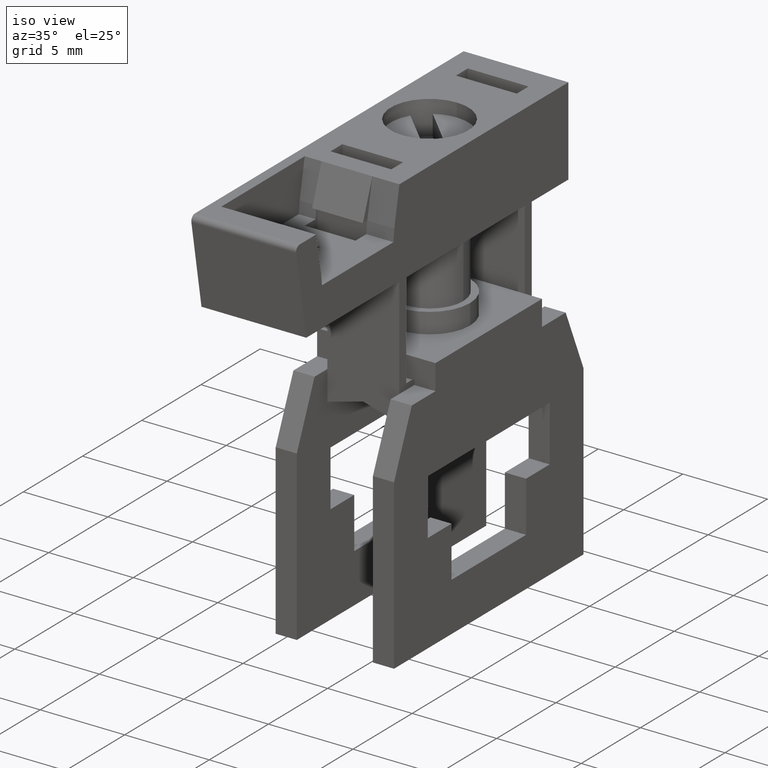
[diagram: clean part render]
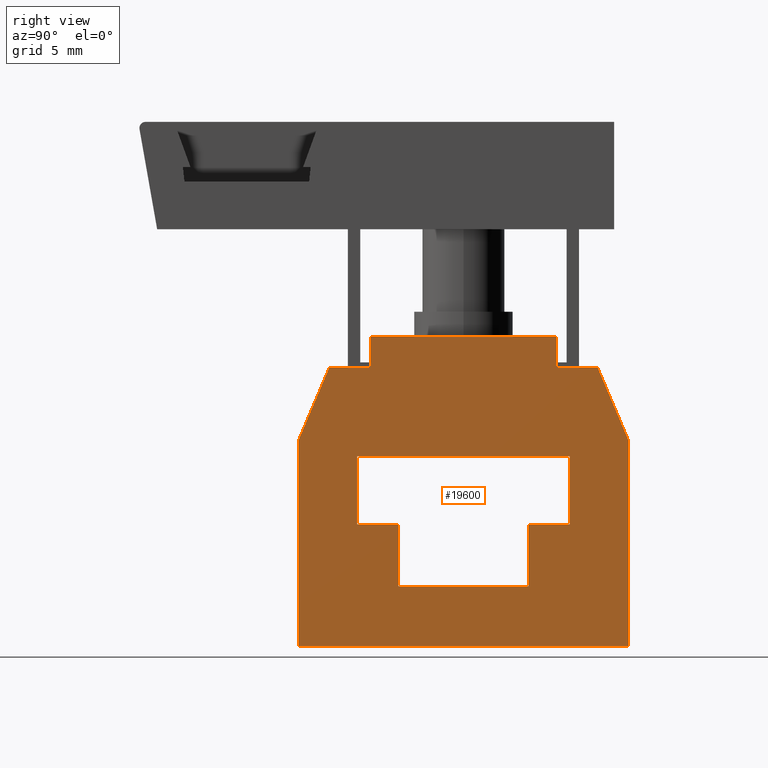
[diagram: tour spotlight — one face highlighted and labeled with its STEP entity id]
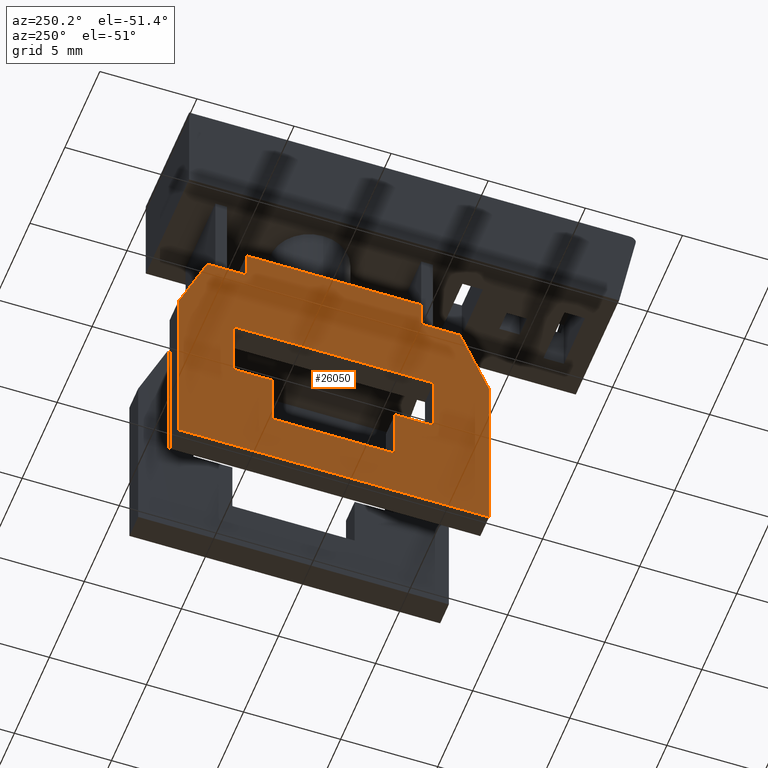
[diagram: tour spotlight — one face highlighted and labeled with its STEP entity id]
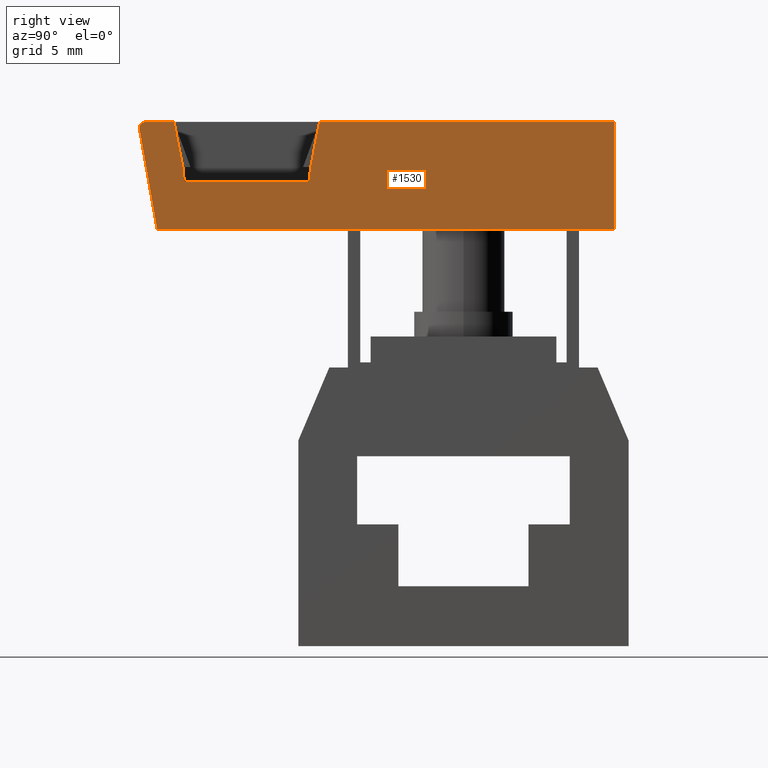
[diagram: tour spotlight — one face highlighted and labeled with its STEP entity id]
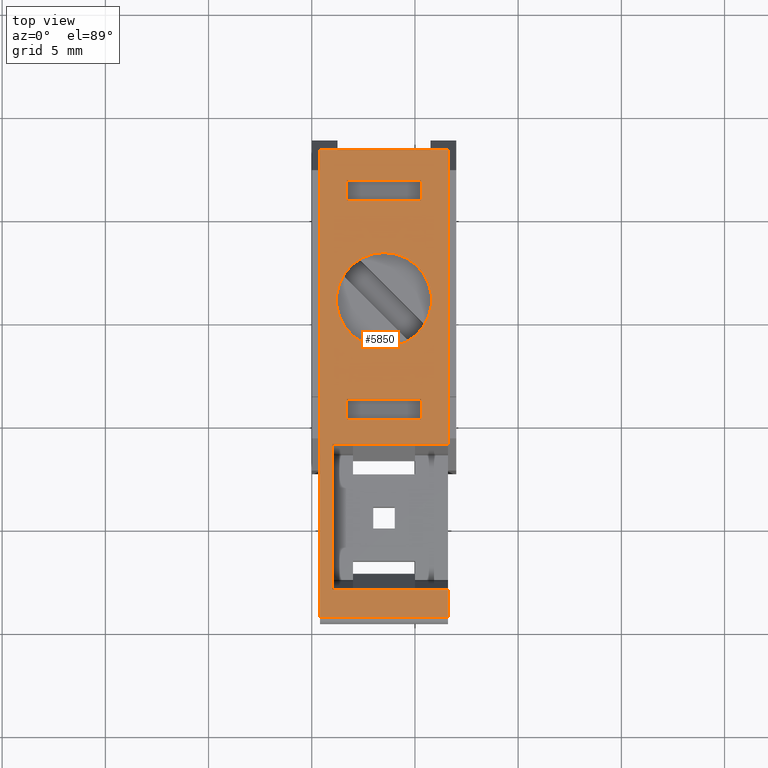
[diagram: tour spotlight — one face highlighted and labeled with its STEP entity id]
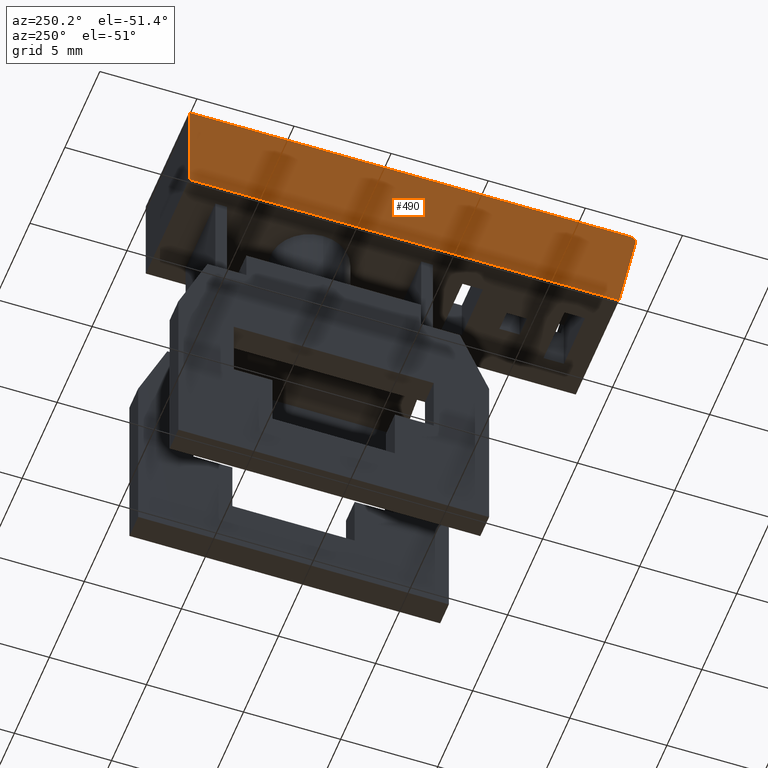
[diagram: tour spotlight — one face highlighted and labeled with its STEP entity id]
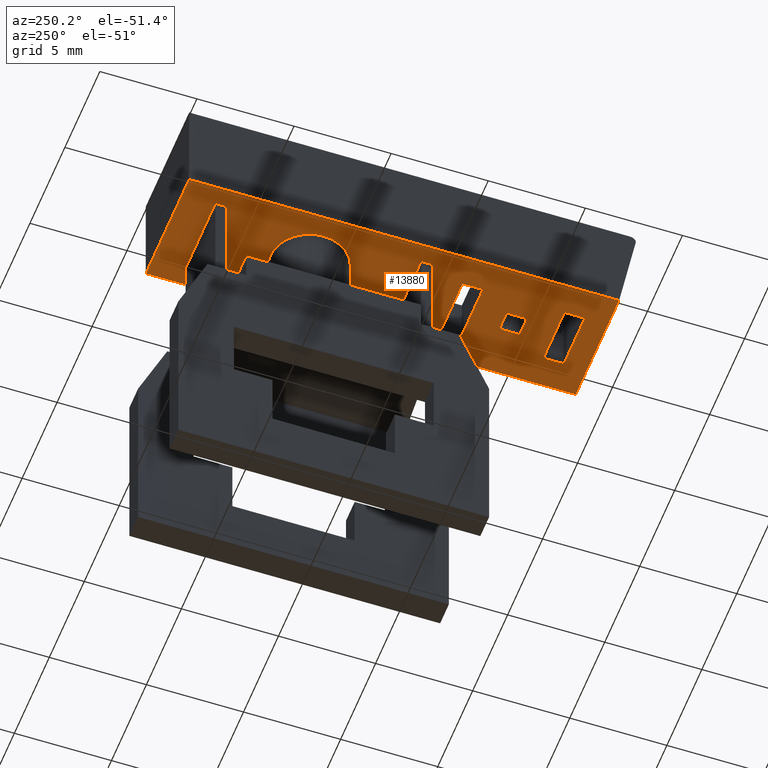
[diagram: tour spotlight — one face highlighted and labeled with its STEP entity id]
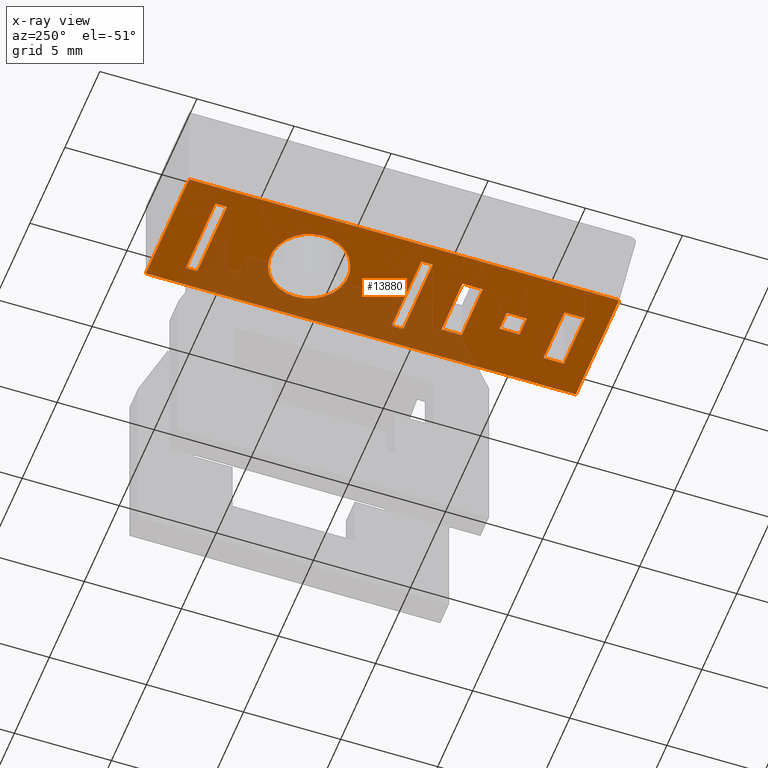
[diagram: x-ray of the same camera — body ghosted, this tour face saturated]
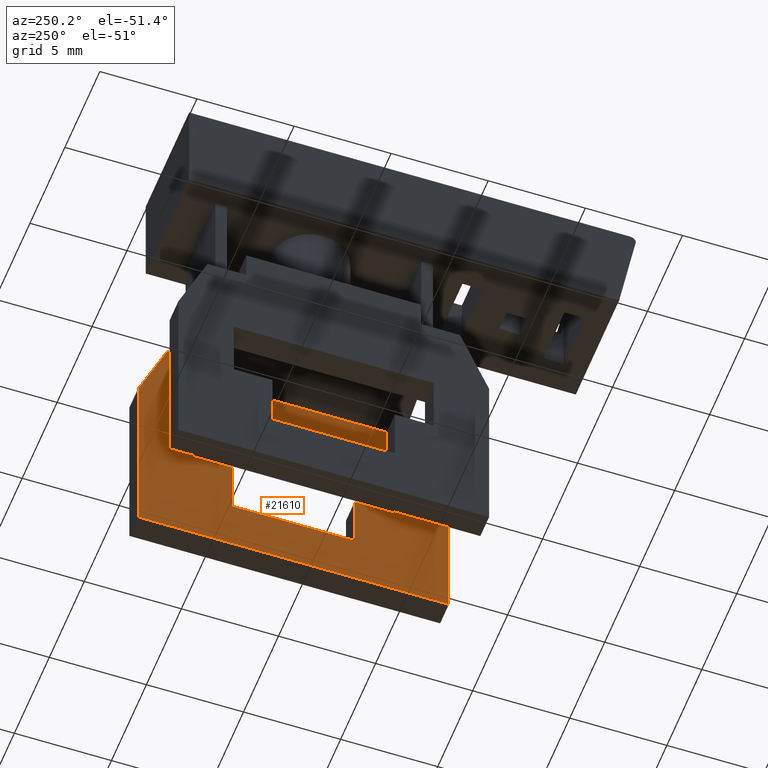
[diagram: tour spotlight — one face highlighted and labeled with its STEP entity id]
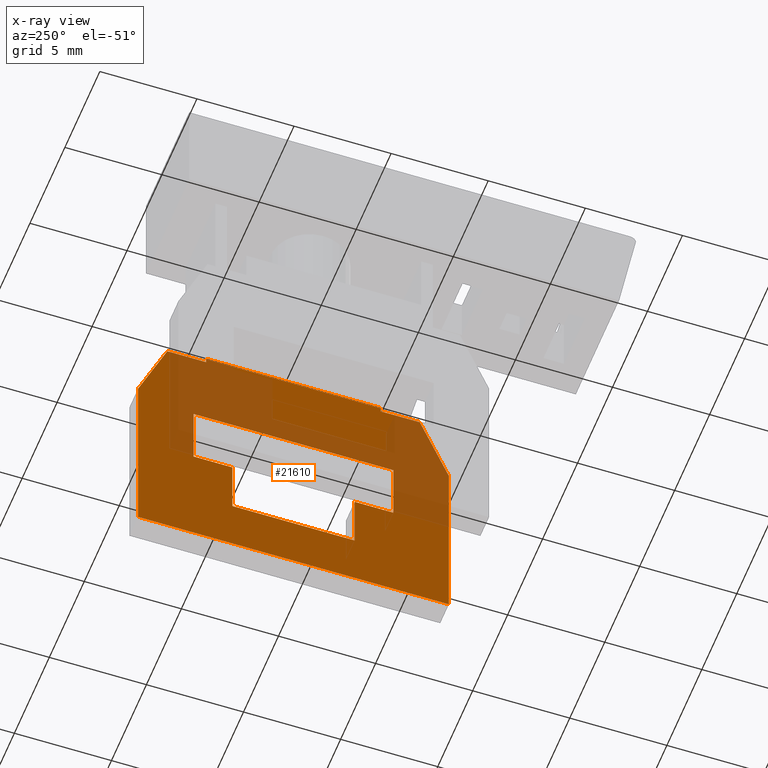
[diagram: x-ray of the same camera — body ghosted, this tour face saturated]
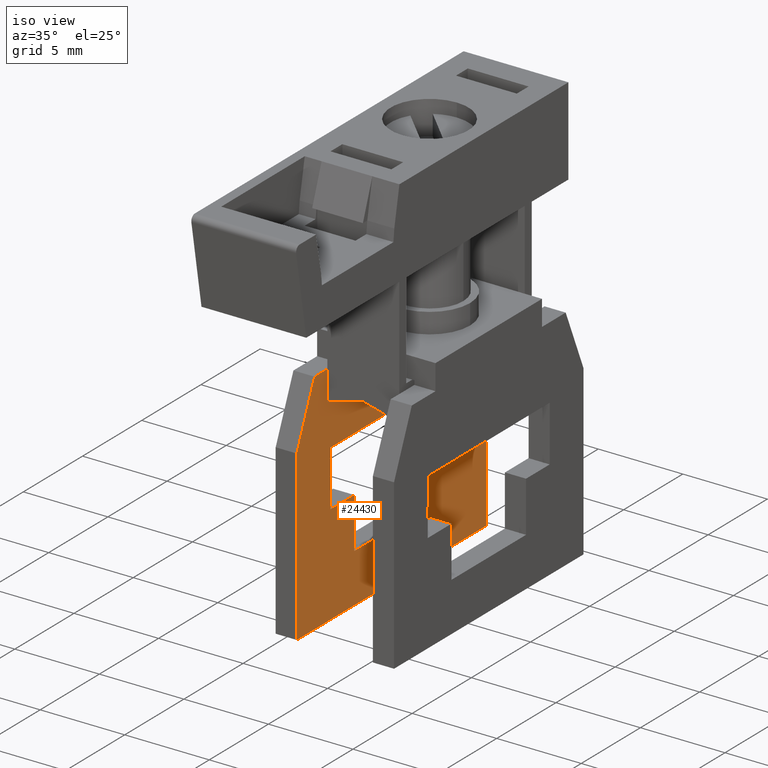
[diagram: tour spotlight — one face highlighted and labeled with its STEP entity id]
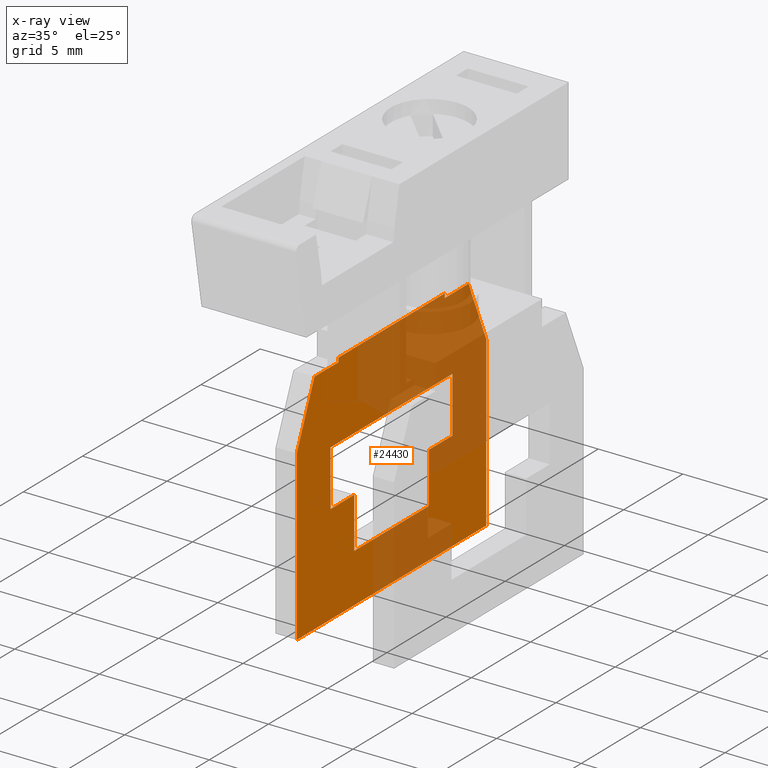
[diagram: x-ray of the same camera — body ghosted, this tour face saturated]
A machine part: a face-by-face anatomy tour. The part has 108 B-rep faces; the first image is the clean iso view, then the 8 largest visible faces are spotlighted one at a time (largest first), each with its STEP entity span.

Face 1 — right view, entity #19600. In plain terms, the highlighted planar face has unit normal (1, 0, 0).
Definition (entity closure, byte-faithful):
#15210=CARTESIAN_POINT('',(0.,19.5,12.5));
#15220=VERTEX_POINT('',#15210);
#15390=CARTESIAN_POINT('',(0.,19.5,3.5));
#15400=VERTEX_POINT('',#15390);
#15430=CARTESIAN_POINT('',(0.,19.5,0.));
#15440=DIRECTION('',(0.,0.,1.));
#15450=VECTOR('',#15440,1.);
#15460=LINE('',#15430,#15450);
#15470=EDGE_CURVE('',#15400,#15220,#15460,.T.);
#16090=CARTESIAN_POINT('',(0.,-1.,12.5));
#16100=DIRECTION('',(0.,1.,-1.83697019872103E-16));
#16110=VECTOR('',#16100,1.);
#16120=LINE('',#16090,#16110);
#16130=CARTESIAN_POINT('',(0.,18.,12.5));
#16140=VERTEX_POINT('',#16130);
#16150=EDGE_CURVE('',#16140,#15220,#16120,.T.);
#17010=CARTESIAN_POINT('',(0.,18.,3.5));
#17020=VERTEX_POINT('',#17010);
#17050=CARTESIAN_POINT('',(0.,-1.,3.50000000000001));
#17060=DIRECTION('',(0.,-1.,1.83697019872103E-16));
#17070=VECTOR('',#17060,1.);
#17080=LINE('',#17050,#17070);
#17090=EDGE_CURVE('',#15400,#17020,#17080,.T.);
#17860=CARTESIAN_POINT('',(0.,18.,1.5));
#17870=VERTEX_POINT('',#17860);
#17900=CARTESIAN_POINT('',(0.,18.,0.));
#17910=DIRECTION('',(0.,-1.83697019872103E-16,-1.));
#17920=VECTOR('',#17910,1.);
#17930=LINE('',#17900,#17920);
#17940=EDGE_CURVE('',#17020,#17870,#17930,.T.);
#18170=CARTESIAN_POINT('',(0.,14.4662214512644,0.));
#18180=VERTEX_POINT('',#18170);
#18210=CARTESIAN_POINT('',(0.,4.5,-4.23041001882971));
#18220=DIRECTION('',(0.,-0.920504853452439,-0.390731128489277));
#18230=VECTOR('',#18220,1.);
#18240=LINE('',#18210,#18230);
#18250=EDGE_CURVE('',#17870,#18180,#18240,.T.);
#18440=CARTESIAN_POINT('',(0.,19.,0.));
#18450=DIRECTION('',(1.,0.,0.));
#18460=DIRECTION('',(0.,-1.,0.));
#18470=AXIS2_PLACEMENT_3D('',#18440,#18450,#18460);
#18480=PLANE('',#18470);
#18490=CARTESIAN_POINT('',(0.,10.4,0.));
#18500=DIRECTION('',(0.,-1.83697019872103E-16,-1.));
#18510=VECTOR('',#18500,1.);
#18520=LINE('',#18490,#18510);
#18530=CARTESIAN_POINT('',(0.,10.4,4.84999999999999));
#18540=VERTEX_POINT('',#18530);
#18550=CARTESIAN_POINT('',(0.,10.4,2.84999999999999));
#18560=VERTEX_POINT('',#18550);
#18570=EDGE_CURVE('',#18540,#18560,#18520,.T.);
#18580=ORIENTED_EDGE('',*,*,#18570,.F.);
#18590=CARTESIAN_POINT('',(0.,4.5,2.85));
#18600=DIRECTION('',(0.,1.,-1.83697019872103E-16));
#18610=VECTOR('',#18600,1.);
#18620=LINE('',#18590,#18610);
#18630=CARTESIAN_POINT('',(0.,13.7,2.84999999999999));
#18640=VERTEX_POINT('',#18630);
#18650=EDGE_CURVE('',#18560,#18640,#18620,.T.);
#18660=ORIENTED_EDGE('',*,*,#18650,.F.);
#18670=CARTESIAN_POINT('',(0.,13.7,0.));
#18680=DIRECTION('',(0.,0.,1.));
#18690=VECTOR('',#18680,1.);
#18700=LINE('',#18670,#18690);
#18710=CARTESIAN_POINT('',(0.,13.7,13.15));
#18720=VERTEX_POINT('',#18710);
#18730=EDGE_CURVE('',#18640,#18720,#18700,.T.);
#18740=ORIENTED_EDGE('',*,*,#18730,.F.);
#18750=CARTESIAN_POINT('',(0.,4.5,13.15));
#18760=DIRECTION('',(0.,-1.,1.83697019872103E-16));
#18770=VECTOR('',#18760,1.);
#18780=LINE('',#18750,#18770);
#18790=CARTESIAN_POINT('',(0.,10.4,13.15));
#18800=VERTEX_POINT('',#18790);
#18810=EDGE_CURVE('',#18720,#18800,#18780,.T.);
#18820=ORIENTED_EDGE('',*,*,#18810,.F.);
#18830=CARTESIAN_POINT('',(0.,10.4,0.));
#18840=DIRECTION('',(0.,-1.83697019872103E-16,-1.));
#18850=VECTOR('',#18840,1.);
#18860=LINE('',#18830,#18850);
#18870=CARTESIAN_POINT('',(0.,10.4,11.15));
#18880=VERTEX_POINT('',#18870);
#18890=EDGE_CURVE('',#18800,#18880,#18860,.T.);
#18900=ORIENTED_EDGE('',*,*,#18890,.F.);
#18910=CARTESIAN_POINT('',(0.,-1.,11.15));
#18920=DIRECTION('',(0.,-1.,1.83697019872103E-16));
#18930=VECTOR('',#18920,1.);
#18940=LINE('',#18910,#18930);
#18950=CARTESIAN_POINT('',(0.,7.40000000000001,11.15));
#18960=VERTEX_POINT('',#18950);
#18970=EDGE_CURVE('',#18880,#18960,#18940,.T.);
#18980=ORIENTED_EDGE('',*,*,#18970,.F.);
#18990=CARTESIAN_POINT('',(0.,7.40000000000001,0.));
#19000=DIRECTION('',(0.,-1.83697019872103E-16,-1.));
#19010=VECTOR('',#19000,1.);
#19020=LINE('',#18990,#19010);
#19030=CARTESIAN_POINT('',(0.,7.40000000000001,4.84999999999999));
#19040=VERTEX_POINT('',#19030);
#19050=EDGE_CURVE('',#18960,#19040,#19020,.T.);
#19060=ORIENTED_EDGE('',*,*,#19050,.F.);
#19070=CARTESIAN_POINT('',(0.,-1.,4.85));
#19080=DIRECTION('',(0.,1.,-1.83697019872103E-16));
#19090=VECTOR('',#19080,1.);
#19100=LINE('',#19070,#19090);
#19110=EDGE_CURVE('',#19040,#18540,#19100,.T.);
#19120=ORIENTED_EDGE('',*,*,#19110,.F.);
#19130=EDGE_LOOP('',(#19120,#19060,#18980,#18900,#18820,#18740,#18660,
#18580));
#19140=FACE_BOUND('',#19130,.T.);
#19150=CARTESIAN_POINT('',(0.,4.5,0.));
#19160=DIRECTION('',(0.,0.,1.));
#19170=VECTOR('',#19160,1.);
#19180=LINE('',#19150,#19170);
#19190=CARTESIAN_POINT('',(0.,4.5,0.));
#19200=VERTEX_POINT('',#19190);
#19210=CARTESIAN_POINT('',(0.,4.5,16.));
#19220=VERTEX_POINT('',#19210);
#19230=EDGE_CURVE('',#19200,#19220,#19180,.T.);
#19240=ORIENTED_EDGE('',*,*,#19230,.F.);
#19250=CARTESIAN_POINT('',(0.,-1.,16.));
#19260=DIRECTION('',(0.,1.,0.));
#19270=VECTOR('',#19260,1.);
#19280=LINE('',#19250,#19270);
#19290=CARTESIAN_POINT('',(0.,14.4662214512644,16.));
#19300=VERTEX_POINT('',#19290);
#19310=EDGE_CURVE('',#19220,#19300,#19280,.T.);
#19320=ORIENTED_EDGE('',*,*,#19310,.F.);
#19330=CARTESIAN_POINT('',(0.,4.5,20.2304100188297));
#19340=DIRECTION('',(0.,0.920504853452439,-0.390731128489276));
#19350=VECTOR('',#19340,1.);
#19360=LINE('',#19330,#19350);
#19370=CARTESIAN_POINT('',(0.,18.,14.5));
#19380=VERTEX_POINT('',#19370);
#19390=EDGE_CURVE('',#19300,#19380,#19360,.T.);
#19400=ORIENTED_EDGE('',*,*,#19390,.F.);
#19410=CARTESIAN_POINT('',(0.,18.,0.));
#19420=DIRECTION('',(0.,-1.83697019872103E-16,-1.));
#19430=VECTOR('',#19420,1.);
#19440=LINE('',#19410,#19430);
#19450=EDGE_CURVE('',#19380,#16140,#19440,.T.);
#19460=ORIENTED_EDGE('',*,*,#19450,.F.);
#19470=ORIENTED_EDGE('',*,*,#16150,.F.);
#19480=ORIENTED_EDGE('',*,*,#15470,.T.);
#19490=ORIENTED_EDGE('',*,*,#17090,.F.);
#19500=ORIENTED_EDGE('',*,*,#17940,.F.);
#19510=ORIENTED_EDGE('',*,*,#18250,.F.);
#19520=CARTESIAN_POINT('',(0.,-1.,0.));
#19530=DIRECTION('',(0.,-1.,0.));
#19540=VECTOR('',#19530,1.);
#19550=LINE('',#19520,#19540);
#19560=EDGE_CURVE('',#18180,#19200,#19550,.T.);
#19570=ORIENTED_EDGE('',*,*,#19560,.F.);
#19580=EDGE_LOOP('',(#19570,#19510,#19500,#19490,#19480,#19470,#19460,
#19400,#19320,#19240));
#19590=FACE_OUTER_BOUND('',#19580,.T.);
#19600=ADVANCED_FACE('',(#19140,#19590),#18480,.T.);

Face 2 — auxiliary view, entity #26050. In plain terms, the highlighted planar face has unit normal (-1, -0, -0).
Definition (entity closure, byte-faithful):
#15230=CARTESIAN_POINT('',(-7.,19.5,12.5));
#15240=VERTEX_POINT('',#15230);
#15270=CARTESIAN_POINT('',(-7.,19.5,0.));
#15280=DIRECTION('',(0.,0.,-1.));
#15290=VECTOR('',#15280,1.);
#15300=LINE('',#15270,#15290);
#15310=CARTESIAN_POINT('',(-7.,19.5,3.5));
#15320=VERTEX_POINT('',#15310);
#15330=EDGE_CURVE('',#15240,#15320,#15300,.T.);
#15980=CARTESIAN_POINT('',(-7.,18.,12.5));
#15990=VERTEX_POINT('',#15980);
#16020=CARTESIAN_POINT('',(-7.,-1.,12.5));
#16030=DIRECTION('',(0.,-1.,1.83697019872103E-16));
#16040=VECTOR('',#16030,1.);
#16050=LINE('',#16020,#16040);
#16060=EDGE_CURVE('',#15240,#15990,#16050,.T.);
#17120=CARTESIAN_POINT('',(-7.,-1.,3.50000000000001));
#17130=DIRECTION('',(0.,1.,-1.83697019872103E-16));
#17140=VECTOR('',#17130,1.);
#17150=LINE('',#17120,#17140);
#17160=CARTESIAN_POINT('',(-7.,18.,3.5));
#17170=VERTEX_POINT('',#17160);
#17180=EDGE_CURVE('',#17170,#15320,#17150,.T.);
#24560=CARTESIAN_POINT('',(-7.,13.7,2.84999999999999));
#24570=VERTEX_POINT('',#24560);
#24600=CARTESIAN_POINT('',(-7.,13.7,0.));
#24610=DIRECTION('',(0.,0.,-1.));
#24620=VECTOR('',#24610,1.);
#24630=LINE('',#24600,#24620);
#24640=CARTESIAN_POINT('',(-7.,13.7,13.15));
#24650=VERTEX_POINT('',#24640);
#24660=EDGE_CURVE('',#24650,#24570,#24630,.T.);
#24840=CARTESIAN_POINT('',(-7.,4.5,0.));
#24850=DIRECTION('',(-1.,0.,0.));
#24860=DIRECTION('',(0.,1.,0.));
#24870=AXIS2_PLACEMENT_3D('',#24840,#24850,#24860);
#24880=PLANE('',#24870);
#24890=CARTESIAN_POINT('',(-7.,-1.,4.85));
#24900=DIRECTION('',(0.,-1.,1.83697019872103E-16));
#24910=VECTOR('',#24900,1.);
#24920=LINE('',#24890,#24910);
#24930=CARTESIAN_POINT('',(-7.,10.4,4.84999999999999));
#24940=VERTEX_POINT('',#24930);
#24950=CARTESIAN_POINT('',(-7.,7.40000000000001,4.84999999999999));
#24960=VERTEX_POINT('',#24950);
#24970=EDGE_CURVE('',#24940,#24960,#24920,.T.);
#24980=ORIENTED_EDGE('',*,*,#24970,.F.);
#24990=CARTESIAN_POINT('',(-7.,7.40000000000001,0.));
#25000=DIRECTION('',(0.,1.83697019872103E-16,1.));
#25010=VECTOR('',#25000,1.);
#25020=LINE('',#24990,#25010);
#25030=CARTESIAN_POINT('',(-7.,7.40000000000001,11.15));
#25040=VERTEX_POINT('',#25030);
#25050=EDGE_CURVE('',#24960,#25040,#25020,.T.);
#25060=ORIENTED_EDGE('',*,*,#25050,.F.);
#25070=CARTESIAN_POINT('',(-7.,-1.,11.15));
#25080=DIRECTION('',(0.,1.,-1.83697019872103E-16));
#25090=VECTOR('',#25080,1.);
#25100=LINE('',#25070,#25090);
#25110=CARTESIAN_POINT('',(-7.,10.4,11.15));
#25120=VERTEX_POINT('',#25110);
#25130=EDGE_CURVE('',#25040,#25120,#25100,.T.);
#25140=ORIENTED_EDGE('',*,*,#25130,.F.);
#25150=CARTESIAN_POINT('',(-7.,10.4,0.));
#25160=DIRECTION('',(0.,1.83697019872103E-16,1.));
#25170=VECTOR('',#25160,1.);
#25180=LINE('',#25150,#25170);
#25190=CARTESIAN_POINT('',(-7.,10.4,13.15));
#25200=VERTEX_POINT('',#25190);
#25210=EDGE_CURVE('',#25120,#25200,#25180,.T.);
#25220=ORIENTED_EDGE('',*,*,#25210,.F.);
#25230=CARTESIAN_POINT('',(-7.,4.5,13.15));
#25240=DIRECTION('',(0.,1.,-1.83697019872103E-16));
#25250=VECTOR('',#25240,1.);
#25260=LINE('',#25230,#25250);
#25270=EDGE_CURVE('',#25200,#24650,#25260,.T.);
#25280=ORIENTED_EDGE('',*,*,#25270,.F.);
#25290=ORIENTED_EDGE('',*,*,#24660,.F.);
#25300=CARTESIAN_POINT('',(-7.,4.5,2.85));
#25310=DIRECTION('',(0.,-1.,1.83697019872103E-16));
#25320=VECTOR('',#25310,1.);
#25330=LINE('',#25300,#25320);
#25340=CARTESIAN_POINT('',(-7.,10.4,2.84999999999999));
#25350=VERTEX_POINT('',#25340);
#25360=EDGE_CURVE('',#24570,#25350,#25330,.T.);
#25370=ORIENTED_EDGE('',*,*,#25360,.F.);
#25380=CARTESIAN_POINT('',(-7.,10.4,0.));
#25390=DIRECTION('',(0.,1.83697019872103E-16,1.));
#25400=VECTOR('',#25390,1.);
#25410=LINE('',#25380,#25400);
#25420=EDGE_CURVE('',#25350,#24940,#25410,.T.);
#25430=ORIENTED_EDGE('',*,*,#25420,.F.);
#25440=EDGE_LOOP('',(#25430,#25370,#25290,#25280,#25220,#25140,#25060,
#24980));
#25450=FACE_BOUND('',#25440,.T.);
#25460=CARTESIAN_POINT('',(-7.,4.5,0.));
#25470=DIRECTION('',(0.,0.,1.));
#25480=VECTOR('',#25470,1.);
#25490=LINE('',#25460,#25480);
#25500=CARTESIAN_POINT('',(-7.,4.5,0.));
#25510=VERTEX_POINT('',#25500);
#25520=CARTESIAN_POINT('',(-7.,4.5,16.));
#25530=VERTEX_POINT('',#25520);
#25540=EDGE_CURVE('',#25510,#25530,#25490,.T.);
#25550=ORIENTED_EDGE('',*,*,#25540,.T.);
#25560=CARTESIAN_POINT('',(-7.,-1.,0.));
#25570=DIRECTION('',(0.,1.,0.));
#25580=VECTOR('',#25570,1.);
#25590=LINE('',#25560,#25580);
#25600=CARTESIAN_POINT('',(-7.,14.4662214512644,0.));
#25610=VERTEX_POINT('',#25600);
#25620=EDGE_CURVE('',#25510,#25610,#25590,.T.);
#25630=ORIENTED_EDGE('',*,*,#25620,.F.);
#25640=CARTESIAN_POINT('',(-7.,4.5,-4.23041001882971));
#25650=DIRECTION('',(0.,0.920504853452439,0.390731128489277));
#25660=VECTOR('',#25650,1.);
#25670=LINE('',#25640,#25660);
#25680=CARTESIAN_POINT('',(-7.,18.,1.5));
#25690=VERTEX_POINT('',#25680);
#25700=EDGE_CURVE('',#25610,#25690,#25670,.T.);
#25710=ORIENTED_EDGE('',*,*,#25700,.F.);
#25720=CARTESIAN_POINT('',(-7.,18.,0.));
#25730=DIRECTION('',(0.,1.83697019872103E-16,1.));
#25740=VECTOR('',#25730,1.);
#25750=LINE('',#25720,#25740);
#25760=EDGE_CURVE('',#25690,#17170,#25750,.T.);
#25770=ORIENTED_EDGE('',*,*,#25760,.F.);
#25780=ORIENTED_EDGE('',*,*,#17180,.F.);
#25790=ORIENTED_EDGE('',*,*,#15330,.T.);
#25800=ORIENTED_EDGE('',*,*,#16060,.F.);
#25810=CARTESIAN_POINT('',(-7.,18.,0.));
#25820=DIRECTION('',(0.,1.83697019872103E-16,1.));
#25830=VECTOR('',#25820,1.);
#25840=LINE('',#25810,#25830);
#25850=CARTESIAN_POINT('',(-7.,18.,14.5));
#25860=VERTEX_POINT('',#25850);
#25870=EDGE_CURVE('',#15990,#25860,#25840,.T.);
#25880=ORIENTED_EDGE('',*,*,#25870,.F.);
#25890=CARTESIAN_POINT('',(-7.,4.5,20.2304100188297));
#25900=DIRECTION('',(0.,-0.920504853452439,0.390731128489276));
#25910=VECTOR('',#25900,1.);
#25920=LINE('',#25890,#25910);
#25930=CARTESIAN_POINT('',(-7.,14.4662214512644,16.));
#25940=VERTEX_POINT('',#25930);
#25950=EDGE_CURVE('',#25860,#25940,#25920,.T.);
#25960=ORIENTED_EDGE('',*,*,#25950,.F.);
#25970=CARTESIAN_POINT('',(-7.,-1.,16.));
#25980=DIRECTION('',(0.,-1.,0.));
#25990=VECTOR('',#25980,1.);
#26000=LINE('',#25970,#25990);
#26010=EDGE_CURVE('',#25940,#25530,#26000,.T.);
#26020=ORIENTED_EDGE('',*,*,#26010,.F.);
#26030=EDGE_LOOP('',(#26020,#25960,#25880,#25800,#25790,#25780,#25770,
#25710,#25630,#25550));
#26040=FACE_OUTER_BOUND('',#26030,.T.);
#26050=ADVANCED_FACE('',(#25450,#26040),#24880,.T.);

Face 3 — right view, entity #1530. In plain terms, the highlighted planar face has unit normal (-1, -0, -0).
Definition (entity closure, byte-faithful):
#570=CARTESIAN_POINT('',(-0.4,16.9649713008287,23.6998172481057));
#580=DIRECTION('',(-1.,0.,6.12323399573677E-17));
#590=DIRECTION('',(6.12323399573677E-17,0.,1.));
#600=AXIS2_PLACEMENT_3D('',#570,#580,#590);
#610=PLANE('',#600);
#620=CARTESIAN_POINT('',(-0.400000000000001,27.7,15.4058136949395));
#630=DIRECTION('',(6.41460922803611E-18,-0.994497688669061,
0.104758518660274));
#640=VECTOR('',#630,1.);
#650=LINE('',#620,#640);
#660=CARTESIAN_POINT('',(-0.400000000000001,27.7,15.4058136949395));
#670=VERTEX_POINT('',#660);
#680=CARTESIAN_POINT('',(-0.400000000000001,27.,15.4795503802005));
#690=VERTEX_POINT('',#680);
#700=EDGE_CURVE('',#670,#690,#650,.T.);
#710=ORIENTED_EDGE('',*,*,#700,.T.);
#720=CARTESIAN_POINT('',(-0.400000000000001,0.8,20.6847059148044));
#730=DIRECTION('',(-2.77555756156289E-17,0.981283551889514,
-0.192568405485166));
#740=VECTOR('',#730,1.);
#750=LINE('',#720,#740);
#760=CARTESIAN_POINT('',(-0.400000000000001,29.9,14.9740827327201));
#770=VERTEX_POINT('',#760);
#780=EDGE_CURVE('',#670,#770,#750,.T.);
#790=ORIENTED_EDGE('',*,*,#780,.F.);
#800=CARTESIAN_POINT('',(-0.400000000000002,29.9,-3.5527136788005E-15));
#810=DIRECTION('',(-6.12323399573677E-17,0.,-1.));
#820=VECTOR('',#810,1.);
#830=LINE('',#800,#820);
#840=CARTESIAN_POINT('',(-0.400000000000002,29.9,0.699999999999996));
#850=VERTEX_POINT('',#840);
#860=EDGE_CURVE('',#770,#850,#830,.T.);
#870=ORIENTED_EDGE('',*,*,#860,.F.);
#880=CARTESIAN_POINT('',(-0.400000000000002,0.8,0.699999999999996));
#890=DIRECTION('',(0.,-1.,0.));
#900=VECTOR('',#890,1.);
#910=LINE('',#880,#900);
#920=CARTESIAN_POINT('',(-0.400000000000002,24.7,0.699999999999996));
#930=VERTEX_POINT('',#920);
#940=EDGE_CURVE('',#850,#930,#910,.T.);
#950=ORIENTED_EDGE('',*,*,#940,.F.);
#960=CARTESIAN_POINT('',(-0.400000000000002,24.7,-3.5527136788005E-15));
#970=DIRECTION('',(6.12323399573677E-17,0.,1.));
#980=VECTOR('',#970,1.);
#990=LINE('',#960,#980);
#1000=CARTESIAN_POINT('',(-0.4,24.7,22.8404430262));
#1010=VERTEX_POINT('',#1000);
#1020=EDGE_CURVE('',#930,#1010,#990,.T.);
#1030=ORIENTED_EDGE('',*,*,#1020,.F.);
#1040=CARTESIAN_POINT('',(-0.400000000000001,0.8,18.6262281872676));
#1050=DIRECTION('',(1.38777878078145E-17,0.984807753012208,
0.173648177666931));
#1060=VECTOR('',#1050,1.);
#1070=LINE('',#1040,#1060);
#1080=CARTESIAN_POINT('',(-0.4,29.5479055466999,23.6952595740094));
#1090=VERTEX_POINT('',#1080);
#1100=EDGE_CURVE('',#1010,#1090,#1070,.T.);
#1110=ORIENTED_EDGE('',*,*,#1100,.F.);
#1120=CARTESIAN_POINT('',(-0.4,29.6,23.3998172481057));
#1130=DIRECTION('',(1.,0.,-6.12323399573677E-17));
#1140=DIRECTION('',(-6.12323399573677E-17,0.,-1.));
#1150=AXIS2_PLACEMENT_3D('',#1120,#1130,#1140);
#1160=CIRCLE('',#1150,0.3);
#1170=CARTESIAN_POINT('',(-0.4,29.9,23.3998172481057));
#1180=VERTEX_POINT('',#1170);
#1190=EDGE_CURVE('',#1180,#1090,#1160,.T.);
#1200=ORIENTED_EDGE('',*,*,#1190,.T.);
#1210=CARTESIAN_POINT('',(-0.400000000000002,29.9,-3.5527136788005E-15))
;
#1220=DIRECTION('',(-6.12323399573677E-17,0.,-1.));
#1230=VECTOR('',#1220,1.);
#1240=LINE('',#1210,#1230);
#1250=CARTESIAN_POINT('',(-0.4,29.9,22.0255517634914));
#1260=VERTEX_POINT('',#1250);
#1270=EDGE_CURVE('',#1180,#1260,#1240,.T.);
#1280=ORIENTED_EDGE('',*,*,#1270,.F.);
#1290=CARTESIAN_POINT('',(-0.400000000000001,0.8,16.3149285814068));
#1300=DIRECTION('',(-2.77555756156289E-17,-0.981283551889513,
-0.192568405485172));
#1310=VECTOR('',#1300,1.);
#1320=LINE('',#1290,#1310);
#1330=CARTESIAN_POINT('',(-0.4,27.7,21.5938208012719));
#1340=VERTEX_POINT('',#1330);
#1350=EDGE_CURVE('',#1260,#1340,#1320,.T.);
#1360=ORIENTED_EDGE('',*,*,#1350,.F.);
#1370=CARTESIAN_POINT('',(-0.4,27.,21.5200841160109));
#1380=DIRECTION('',(6.41460922803577E-18,0.994497688669062,
0.104758518660268));
#1390=VECTOR('',#1380,1.);
#1400=LINE('',#1370,#1390);
#1410=CARTESIAN_POINT('',(-0.4,27.,21.5200841160109));
#1420=VERTEX_POINT('',#1410);
#1430=EDGE_CURVE('',#1420,#1340,#1400,.T.);
#1440=ORIENTED_EDGE('',*,*,#1430,.T.);
#1450=CARTESIAN_POINT('',(-0.400000000000002,27.,-3.5527136788005E-15));
#1460=DIRECTION('',(6.12323399573677E-17,0.,1.));
#1470=VECTOR('',#1460,1.);
#1480=LINE('',#1450,#1470);
#1490=EDGE_CURVE('',#690,#1420,#1480,.T.);
#1500=ORIENTED_EDGE('',*,*,#1490,.T.);
#1510=EDGE_LOOP('',(#1500,#1440,#1360,#1280,#1200,#1110,#1030,#950,#870,
#790,#710));
#1520=FACE_OUTER_BOUND('',#1510,.T.);
#1530=ADVANCED_FACE('',(#1520),#610,.F.);

Face 4 — top view, entity #5850. In plain terms, the highlighted planar face has unit normal (-0, -0, 1).
Definition (entity closure, byte-faithful):
#110=CARTESIAN_POINT('',(-6.6,29.9,23.3998172481057));
#120=VERTEX_POINT('',#110);
#370=CARTESIAN_POINT('',(-6.6,29.9,0.699999999999996));
#380=VERTEX_POINT('',#370);
#410=CARTESIAN_POINT('',(-6.6,29.9,-3.5527136788005E-15));
#420=DIRECTION('',(-6.12323399573677E-17,0.,-1.));
#430=VECTOR('',#420,1.);
#440=LINE('',#410,#430);
#450=EDGE_CURVE('',#120,#380,#440,.T.);
#760=CARTESIAN_POINT('',(-0.400000000000001,29.9,14.9740827327201));
#770=VERTEX_POINT('',#760);
#800=CARTESIAN_POINT('',(-0.400000000000002,29.9,-3.5527136788005E-15));
#810=DIRECTION('',(-6.12323399573677E-17,0.,-1.));
#820=VECTOR('',#810,1.);
#830=LINE('',#800,#820);
#840=CARTESIAN_POINT('',(-0.400000000000002,29.9,0.699999999999996));
#850=VERTEX_POINT('',#840);
#860=EDGE_CURVE('',#770,#850,#830,.T.);
#1170=CARTESIAN_POINT('',(-0.4,29.9,23.3998172481057));
#1180=VERTEX_POINT('',#1170);
#1210=CARTESIAN_POINT('',(-0.400000000000002,29.9,-3.5527136788005E-15))
;
#1220=DIRECTION('',(-6.12323399573677E-17,0.,-1.));
#1230=VECTOR('',#1220,1.);
#1240=LINE('',#1210,#1230);
#1250=CARTESIAN_POINT('',(-0.4,29.9,22.0255517634914));
#1260=VERTEX_POINT('',#1250);
#1270=EDGE_CURVE('',#1180,#1260,#1240,.T.);
#1660=CARTESIAN_POINT('',(0.,29.9,14.9740827327201));
#1670=DIRECTION('',(1.,2.49047552625933E-32,-6.12323399573677E-17));
#1680=VECTOR('',#1670,1.);
#1690=LINE('',#1660,#1680);
#1700=CARTESIAN_POINT('',(-6.,29.9,14.9740827327201));
#1710=VERTEX_POINT('',#1700);
#1720=CARTESIAN_POINT('',(-5.,29.9,14.9740827327201));
#1730=VERTEX_POINT('',#1720);
#1740=EDGE_CURVE('',#1710,#1730,#1690,.T.);
#2270=CARTESIAN_POINT('',(-5.,29.9,22.0255517634914));
#2280=VERTEX_POINT('',#2270);
#2310=CARTESIAN_POINT('',(0.,29.9,22.0255517634914));
#2320=DIRECTION('',(-1.,-7.47142657877829E-33,6.12323399573676E-17));
#2330=VECTOR('',#2320,1.);
#2340=LINE('',#2310,#2330);
#2350=CARTESIAN_POINT('',(-6.,29.9,22.0255517634914));
#2360=VERTEX_POINT('',#2350);
#2370=EDGE_CURVE('',#2280,#2360,#2340,.T.);
#3130=CARTESIAN_POINT('',(-6.,29.9,22.3));
#3140=DIRECTION('',(-6.12323399573677E-17,0.,-1.));
#3150=VECTOR('',#3140,1.);
#3160=LINE('',#3130,#3150);
#3170=EDGE_CURVE('',#2360,#1710,#3160,.T.);
#4490=CARTESIAN_POINT('',(-0.400000000000002,29.9,0.999817248105728));
#4500=DIRECTION('',(-0.,1.,0.));
#4510=DIRECTION('',(6.12323399573677E-17,0.,1.));
#4520=AXIS2_PLACEMENT_3D('',#4490,#4500,#4510);
#4530=PLANE('',#4520);
#4540=CARTESIAN_POINT('',(-3.5,29.9,8.));
#4550=DIRECTION('',(0.,-1.,0.));
#4560=DIRECTION('',(6.12323399573677E-17,0.,1.));
#4570=AXIS2_PLACEMENT_3D('',#4540,#4550,#4560);
#4580=CIRCLE('',#4570,2.3);
#4590=CARTESIAN_POINT('',(-3.5,29.9,10.3));
#4600=VERTEX_POINT('',#4590);
#4610=CARTESIAN_POINT('',(-3.5,29.9,5.7));
#4620=VERTEX_POINT('',#4610);
#4630=EDGE_CURVE('',#4600,#4620,#4580,.T.);
#4640=ORIENTED_EDGE('',*,*,#4630,.T.);
#4650=EDGE_CURVE('',#4620,#4600,#4580,.T.);
#4660=ORIENTED_EDGE('',*,*,#4650,.T.);
#4670=EDGE_LOOP('',(#4660,#4640));
#4680=FACE_BOUND('',#4670,.T.);
#4690=CARTESIAN_POINT('',(-5.3,29.9,-3.5527136788005E-15));
#4700=DIRECTION('',(-1.23259516440783E-32,0.,-1.));
#4710=VECTOR('',#4700,1.);
#4720=LINE('',#4690,#4710);
#4730=CARTESIAN_POINT('',(-5.3,29.9,13.8));
#4740=VERTEX_POINT('',#4730);
#4750=CARTESIAN_POINT('',(-5.3,29.9,12.8));
#4760=VERTEX_POINT('',#4750);
#4770=EDGE_CURVE('',#4740,#4760,#4720,.T.);
#4780=ORIENTED_EDGE('',*,*,#4770,.T.);
#4790=CARTESIAN_POINT('',(0.,29.9,13.8));
#4800=DIRECTION('',(-1.,0.,0.));
#4810=VECTOR('',#4800,1.);
#4820=LINE('',#4790,#4810);
#4830=CARTESIAN_POINT('',(-1.7,29.9,13.8));
#4840=VERTEX_POINT('',#4830);
#4850=EDGE_CURVE('',#4840,#4740,#4820,.T.);
#4860=ORIENTED_EDGE('',*,*,#4850,.T.);
#4870=CARTESIAN_POINT('',(-1.7,29.9,-3.5527136788005E-15));
#4880=DIRECTION('',(1.23259516440783E-32,0.,1.));
#4890=VECTOR('',#4880,1.);
#4900=LINE('',#4870,#4890);
#4910=CARTESIAN_POINT('',(-1.7,29.9,12.8));
#4920=VERTEX_POINT('',#4910);
#4930=EDGE_CURVE('',#4920,#4840,#4900,.T.);
#4940=ORIENTED_EDGE('',*,*,#4930,.T.);
#4950=CARTESIAN_POINT('',(0.,29.9,12.8));
#4960=DIRECTION('',(1.,0.,0.));
#4970=VECTOR('',#4960,1.);
#4980=LINE('',#4950,#4970);
#4990=EDGE_CURVE('',#4760,#4920,#4980,.T.);
#5000=ORIENTED_EDGE('',*,*,#4990,.T.);
#5010=EDGE_LOOP('',(#5000,#4940,#4860,#4780));
#5020=FACE_BOUND('',#5010,.T.);
#5030=CARTESIAN_POINT('',(0.,29.9,2.19999999999999));
#5040=DIRECTION('',(1.,0.,0.));
#5050=VECTOR('',#5040,1.);
#5060=LINE('',#5030,#5050);
#5070=CARTESIAN_POINT('',(-5.3,29.9,2.19999999999999));
#5080=VERTEX_POINT('',#5070);
#5090=CARTESIAN_POINT('',(-1.7,29.9,2.19999999999999));
#5100=VERTEX_POINT('',#5090);
#5110=EDGE_CURVE('',#5080,#5100,#5060,.T.);
#5120=ORIENTED_EDGE('',*,*,#5110,.T.);
#5130=CARTESIAN_POINT('',(-5.3,29.9,-3.5527136788005E-15));
#5140=DIRECTION('',(-1.23259516440783E-32,0.,-1.));
#5150=VECTOR('',#5140,1.);
#5160=LINE('',#5130,#5150);
#5170=CARTESIAN_POINT('',(-5.3,29.9,3.19999999999999));
#5180=VERTEX_POINT('',#5170);
#5190=EDGE_CURVE('',#5180,#5080,#5160,.T.);
#5200=ORIENTED_EDGE('',*,*,#5190,.T.);
#5210=CARTESIAN_POINT('',(0.,29.9,3.19999999999999));
#5220=DIRECTION('',(-1.,0.,0.));
#5230=VECTOR('',#5220,1.);
#5240=LINE('',#5210,#5230);
#5250=CARTESIAN_POINT('',(-1.7,29.9,3.19999999999999));
#5260=VERTEX_POINT('',#5250);
#5270=EDGE_CURVE('',#5260,#5180,#5240,.T.);
#5280=ORIENTED_EDGE('',*,*,#5270,.T.);
#5290=CARTESIAN_POINT('',(-1.7,29.9,-3.5527136788005E-15));
#5300=DIRECTION('',(1.23259516440783E-32,0.,1.));
#5310=VECTOR('',#5300,1.);
#5320=LINE('',#5290,#5310);
#5330=EDGE_CURVE('',#5100,#5260,#5320,.T.);
#5340=ORIENTED_EDGE('',*,*,#5330,.T.);
#5350=EDGE_LOOP('',(#5340,#5280,#5200,#5120));
#5360=FACE_BOUND('',#5350,.T.);
#5370=ORIENTED_EDGE('',*,*,#450,.F.);
#5380=CARTESIAN_POINT('',(0.,29.9,0.699999999999996));
#5390=DIRECTION('',(1.,0.,-6.12323399573677E-17));
#5400=VECTOR('',#5390,1.);
#5410=LINE('',#5380,#5400);
#5420=EDGE_CURVE('',#380,#850,#5410,.T.);
#5430=ORIENTED_EDGE('',*,*,#5420,.F.);
#5440=ORIENTED_EDGE('',*,*,#860,.T.);
#5450=CARTESIAN_POINT('',(0.,29.9,14.9740827327201));
#5460=DIRECTION('',(1.,0.,-6.12323399573676E-17));
#5470=VECTOR('',#5460,1.);
#5480=LINE('',#5450,#5470);
#5490=CARTESIAN_POINT('',(-2.,29.9,14.9740827327201));
#5500=VERTEX_POINT('',#5490);
#5510=EDGE_CURVE('',#5500,#770,#5480,.T.);
#5520=ORIENTED_EDGE('',*,*,#5510,.T.);
#5530=CARTESIAN_POINT('',(0.,29.9,14.9740827327201));
#5540=DIRECTION('',(1.,0.,-6.12323399573677E-17));
#5550=VECTOR('',#5540,1.);
#5560=LINE('',#5530,#5550);
#5570=EDGE_CURVE('',#1730,#5500,#5560,.T.);
#5580=ORIENTED_EDGE('',*,*,#5570,.T.);
#5590=ORIENTED_EDGE('',*,*,#1740,.T.);
#5600=ORIENTED_EDGE('',*,*,#3170,.T.);
#5610=ORIENTED_EDGE('',*,*,#2370,.T.);
#5620=CARTESIAN_POINT('',(0.,29.9,22.0255517634914));
#5630=DIRECTION('',(1.,0.,-6.12323399573677E-17));
#5640=VECTOR('',#5630,1.);
#5650=LINE('',#5620,#5640);
#5660=CARTESIAN_POINT('',(-2.,29.9,22.0255517634914));
#5670=VERTEX_POINT('',#5660);
#5680=EDGE_CURVE('',#2280,#5670,#5650,.T.);
#5690=ORIENTED_EDGE('',*,*,#5680,.F.);
#5700=CARTESIAN_POINT('',(0.,29.9,22.0255517634914));
#5710=DIRECTION('',(-1.,-7.47142657877829E-33,6.12323399573676E-17));
#5720=VECTOR('',#5710,1.);
#5730=LINE('',#5700,#5720);
#5740=EDGE_CURVE('',#1260,#5670,#5730,.T.);
#5750=ORIENTED_EDGE('',*,*,#5740,.T.);
#5760=ORIENTED_EDGE('',*,*,#1270,.T.);
#5770=CARTESIAN_POINT('',(0.,29.9,23.3998172481057));
#5780=DIRECTION('',(1.,0.,-6.12323399573677E-17));
#5790=VECTOR('',#5780,1.);
#5800=LINE('',#5770,#5790);
#5810=EDGE_CURVE('',#120,#1180,#5800,.T.);
#5820=ORIENTED_EDGE('',*,*,#5810,.T.);
#5830=EDGE_LOOP('',(#5820,#5760,#5750,#5690,#5610,#5600,#5590,#5580,
#5520,#5440,#5430,#5370));
#5840=FACE_OUTER_BOUND('',#5830,.T.);
#5850=ADVANCED_FACE('',(#4680,#5020,#5360,#5840),#4530,.T.);

Face 5 — auxiliary view, entity #490. In plain terms, the highlighted planar face has unit normal (-1, -0, -0).
Definition (entity closure, byte-faithful):
#10=CARTESIAN_POINT('',(-6.6,16.9649713008287,23.6998172481057));
#20=DIRECTION('',(-1.,0.,6.12323399573677E-17));
#30=DIRECTION('',(6.12323399573677E-17,0.,1.));
#40=AXIS2_PLACEMENT_3D('',#10,#20,#30);
#50=PLANE('',#40);
#60=CARTESIAN_POINT('',(-6.6,29.6,23.3998172481057));
#70=DIRECTION('',(1.,0.,-6.12323399573677E-17));
#80=DIRECTION('',(-6.12323399573677E-17,0.,-1.));
#90=AXIS2_PLACEMENT_3D('',#60,#70,#80);
#100=CIRCLE('',#90,0.3);
#110=CARTESIAN_POINT('',(-6.6,29.9,23.3998172481057));
#120=VERTEX_POINT('',#110);
#130=CARTESIAN_POINT('',(-6.6,29.5479055466999,23.6952595740094));
#140=VERTEX_POINT('',#130);
#150=EDGE_CURVE('',#120,#140,#100,.T.);
#160=ORIENTED_EDGE('',*,*,#150,.F.);
#170=CARTESIAN_POINT('',(-6.6,0.8,18.6262281872676));
#180=DIRECTION('',(1.38777878078145E-17,0.984807753012208,
0.173648177666931));
#190=VECTOR('',#180,1.);
#200=LINE('',#170,#190);
#210=CARTESIAN_POINT('',(-6.6,24.7,22.8404430262));
#220=VERTEX_POINT('',#210);
#230=EDGE_CURVE('',#220,#140,#200,.T.);
#240=ORIENTED_EDGE('',*,*,#230,.T.);
#250=CARTESIAN_POINT('',(-6.6,24.7,-3.5527136788005E-15));
#260=DIRECTION('',(6.12323399573677E-17,0.,1.));
#270=VECTOR('',#260,1.);
#280=LINE('',#250,#270);
#290=CARTESIAN_POINT('',(-6.6,24.7,0.699999999999996));
#300=VERTEX_POINT('',#290);
#310=EDGE_CURVE('',#300,#220,#280,.T.);
#320=ORIENTED_EDGE('',*,*,#310,.T.);
#330=CARTESIAN_POINT('',(-6.6,0.8,0.699999999999996));
#340=DIRECTION('',(0.,-1.,0.));
#350=VECTOR('',#340,1.);
#360=LINE('',#330,#350);
#370=CARTESIAN_POINT('',(-6.6,29.9,0.699999999999996));
#380=VERTEX_POINT('',#370);
#390=EDGE_CURVE('',#380,#300,#360,.T.);
#400=ORIENTED_EDGE('',*,*,#390,.T.);
#410=CARTESIAN_POINT('',(-6.6,29.9,-3.5527136788005E-15));
#420=DIRECTION('',(-6.12323399573677E-17,0.,-1.));
#430=VECTOR('',#420,1.);
#440=LINE('',#410,#430);
#450=EDGE_CURVE('',#120,#380,#440,.T.);
#460=ORIENTED_EDGE('',*,*,#450,.T.);
#470=EDGE_LOOP('',(#460,#400,#320,#240,#160));
#480=FACE_OUTER_BOUND('',#470,.T.);
#490=ADVANCED_FACE('',(#480),#50,.T.);

Face 6 — auxiliary view, entity #13880. An x-ray twin of the same camera follows (body ghosted, this face saturated) — the face is partly hidden behind the body. In plain terms, the highlighted planar face has unit normal (0, 0, -1).
Definition (entity closure, byte-faithful):
#210=CARTESIAN_POINT('',(-6.6,24.7,22.8404430262));
#220=VERTEX_POINT('',#210);
#250=CARTESIAN_POINT('',(-6.6,24.7,-3.5527136788005E-15));
#260=DIRECTION('',(6.12323399573677E-17,0.,1.));
#270=VECTOR('',#260,1.);
#280=LINE('',#250,#270);
#290=CARTESIAN_POINT('',(-6.6,24.7,0.699999999999996));
#300=VERTEX_POINT('',#290);
#310=EDGE_CURVE('',#300,#220,#280,.T.);
#920=CARTESIAN_POINT('',(-0.400000000000002,24.7,0.699999999999996));
#930=VERTEX_POINT('',#920);
#960=CARTESIAN_POINT('',(-0.400000000000002,24.7,-3.5527136788005E-15));
#970=DIRECTION('',(6.12323399573677E-17,0.,1.));
#980=VECTOR('',#970,1.);
#990=LINE('',#960,#980);
#1000=CARTESIAN_POINT('',(-0.4,24.7,22.8404430262));
#1010=VERTEX_POINT('',#1000);
#1020=EDGE_CURVE('',#930,#1010,#990,.T.);
#11710=CARTESIAN_POINT('',(-5.,24.7,20.6));
#11720=VERTEX_POINT('',#11710);
#11750=CARTESIAN_POINT('',(-5.,24.7,-3.5527136788005E-15));
#11760=DIRECTION('',(6.12323399573677E-17,0.,1.));
#11770=VECTOR('',#11760,1.);
#11780=LINE('',#11750,#11770);
#11790=CARTESIAN_POINT('',(-5.,24.7,21.65));
#11800=VERTEX_POINT('',#11790);
#11810=EDGE_CURVE('',#11720,#11800,#11780,.T.);
#11990=CARTESIAN_POINT('',(-0.4,24.7,22.5887131368468));
#12000=DIRECTION('',(0.,-1.,-0.));
#12010=DIRECTION('',(-6.12323399573677E-17,0.,-1.));
#12020=AXIS2_PLACEMENT_3D('',#11990,#12000,#12010);
#12030=PLANE('',#12020);
#12040=CARTESIAN_POINT('',(-4.02,24.7,-3.5527136788005E-15));
#12050=DIRECTION('',(6.12323399573677E-17,0.,1.));
#12060=VECTOR('',#12050,1.);
#12070=LINE('',#12040,#12060);
#12080=CARTESIAN_POINT('',(-4.02,24.7,17.98));
#12090=VERTEX_POINT('',#12080);
#12100=CARTESIAN_POINT('',(-4.02,24.7,19.02));
#12110=VERTEX_POINT('',#12100);
#12120=EDGE_CURVE('',#12090,#12110,#12070,.T.);
#12130=ORIENTED_EDGE('',*,*,#12120,.T.);
#12140=CARTESIAN_POINT('',(0.,24.7,17.98));
#12150=DIRECTION('',(-1.,0.,6.12323399573677E-17));
#12160=VECTOR('',#12150,1.);
#12170=LINE('',#12140,#12160);
#12180=CARTESIAN_POINT('',(-2.98,24.7,17.98));
#12190=VERTEX_POINT('',#12180);
#12200=EDGE_CURVE('',#12190,#12090,#12170,.T.);
#12210=ORIENTED_EDGE('',*,*,#12200,.T.);
#12220=CARTESIAN_POINT('',(-2.98,24.7,-3.5527136788005E-15));
#12230=DIRECTION('',(-6.12323399573677E-17,0.,-1.));
#12240=VECTOR('',#12230,1.);
#12250=LINE('',#12220,#12240);
#12260=CARTESIAN_POINT('',(-2.98,24.7,19.02));
#12270=VERTEX_POINT('',#12260);
#12280=EDGE_CURVE('',#12270,#12190,#12250,.T.);
#12290=ORIENTED_EDGE('',*,*,#12280,.T.);
#12300=CARTESIAN_POINT('',(0.,24.7,19.02));
#12310=DIRECTION('',(1.,0.,-6.12323399573677E-17));
#12320=VECTOR('',#12310,1.);
#12330=LINE('',#12300,#12320);
#12340=EDGE_CURVE('',#12110,#12270,#12330,.T.);
#12350=ORIENTED_EDGE('',*,*,#12340,.T.);
#12360=EDGE_LOOP('',(#12350,#12290,#12210,#12130));
#12370=FACE_BOUND('',#12360,.T.);
#12380=CARTESIAN_POINT('',(-1.37499999999983,24.7,-3.5527136788005E-15))
;
#12390=DIRECTION('',(0.,0.,1.));
#12400=VECTOR('',#12390,1.);
#12410=LINE('',#12380,#12400);
#12420=CARTESIAN_POINT('',(-1.37499999999979,24.7,13.));
#12430=VERTEX_POINT('',#12420);
#12440=CARTESIAN_POINT('',(-1.37499999999979,24.7,13.6));
#12450=VERTEX_POINT('',#12440);
#12460=EDGE_CURVE('',#12430,#12450,#12410,.T.);
#12470=ORIENTED_EDGE('',*,*,#12460,.F.);
#12480=CARTESIAN_POINT('',(0.,24.7,13.6));
#12490=DIRECTION('',(-1.,0.,0.));
#12500=VECTOR('',#12490,1.);
#12510=LINE('',#12480,#12500);
#12520=CARTESIAN_POINT('',(-5.6250000000001,24.7,13.6));
#12530=VERTEX_POINT('',#12520);
#12540=EDGE_CURVE('',#12450,#12530,#12510,.T.);
#12550=ORIENTED_EDGE('',*,*,#12540,.F.);
#12560=CARTESIAN_POINT('',(-5.62500000000008,24.7,-3.5527136788005E-15))
;
#12570=DIRECTION('',(0.,0.,-1.));
#12580=VECTOR('',#12570,1.);
#12590=LINE('',#12560,#12580);
#12600=CARTESIAN_POINT('',(-5.6250000000001,24.7,13.));
#12610=VERTEX_POINT('',#12600);
#12620=EDGE_CURVE('',#12530,#12610,#12590,.T.);
#12630=ORIENTED_EDGE('',*,*,#12620,.F.);
#12640=CARTESIAN_POINT('',(0.,24.7,13.));
#12650=DIRECTION('',(-1.,0.,0.));
#12660=VECTOR('',#12650,1.);
#12670=LINE('',#12640,#12660);
#12680=EDGE_CURVE('',#12430,#12610,#12670,.T.);
#12690=ORIENTED_EDGE('',*,*,#12680,.T.);
#12700=EDGE_LOOP('',(#12690,#12630,#12550,#12470));
#12710=FACE_BOUND('',#12700,.T.);
#12720=CARTESIAN_POINT('',(-5.6250000000001,24.7,2.99999999999999));
#12730=VERTEX_POINT('',#12720);
#12740=CARTESIAN_POINT('',(-5.6250000000001,24.7,2.39999999999999));
#12750=VERTEX_POINT('',#12740);
#12760=EDGE_CURVE('',#12730,#12750,#12590,.T.);
#12770=ORIENTED_EDGE('',*,*,#12760,.F.);
#12780=CARTESIAN_POINT('',(0.,24.7,2.39999999999998));
#12790=DIRECTION('',(-1.,0.,0.));
#12800=VECTOR('',#12790,1.);
#12810=LINE('',#12780,#12800);
#12820=CARTESIAN_POINT('',(-1.37499999999979,24.7,2.39999999999999));
#12830=VERTEX_POINT('',#12820);
#12840=EDGE_CURVE('',#12830,#12750,#12810,.T.);
#12850=ORIENTED_EDGE('',*,*,#12840,.T.);
#12860=CARTESIAN_POINT('',(-1.37499999999979,24.7,2.99999999999999));
#12870=VERTEX_POINT('',#12860);
#12880=EDGE_CURVE('',#12830,#12870,#12410,.T.);
#12890=ORIENTED_EDGE('',*,*,#12880,.F.);
#12900=CARTESIAN_POINT('',(0.,24.7,2.99999999999998));
#12910=DIRECTION('',(-1.,0.,0.));
#12920=VECTOR('',#12910,1.);
#12930=LINE('',#12900,#12920);
#12940=EDGE_CURVE('',#12870,#12730,#12930,.T.);
#12950=ORIENTED_EDGE('',*,*,#12940,.F.);
#12960=EDGE_LOOP('',(#12950,#12890,#12850,#12770));
#12970=FACE_BOUND('',#12960,.T.);
#12980=CARTESIAN_POINT('',(-3.5,24.7,8.));
#12990=DIRECTION('',(0.,1.,0.));
#13000=DIRECTION('',(1.,0.,0.));
#13010=AXIS2_PLACEMENT_3D('',#12980,#12990,#13000);
#13020=CIRCLE('',#13010,2.);
#13030=CARTESIAN_POINT('',(-1.5,24.7,8.));
#13040=VERTEX_POINT('',#13030);
#13050=CARTESIAN_POINT('',(-5.5,24.7,8.));
#13060=VERTEX_POINT('',#13050);
#13070=EDGE_CURVE('',#13040,#13060,#13020,.T.);
#13080=ORIENTED_EDGE('',*,*,#13070,.T.);
#13090=EDGE_CURVE('',#13060,#13040,#13020,.T.);
#13100=ORIENTED_EDGE('',*,*,#13090,.T.);
#13110=EDGE_LOOP('',(#13100,#13080));
#13120=FACE_BOUND('',#13110,.T.);
#13130=CARTESIAN_POINT('',(-2.,24.7,-3.5527136788005E-15));
#13140=DIRECTION('',(-6.12323399573677E-17,0.,-1.));
#13150=VECTOR('',#13140,1.);
#13160=LINE('',#13130,#13150);
#13170=CARTESIAN_POINT('',(-2.,24.7,16.4));
#13180=VERTEX_POINT('',#13170);
#13190=CARTESIAN_POINT('',(-2.,24.7,15.35));
#13200=VERTEX_POINT('',#13190);
#13210=EDGE_CURVE('',#13180,#13200,#13160,.T.);
#13220=ORIENTED_EDGE('',*,*,#13210,.T.);
#13230=CARTESIAN_POINT('',(0.,24.7,16.4));
#13240=DIRECTION('',(1.,0.,-6.12323399573677E-17));
#13250=VECTOR('',#13240,1.);
#13260=LINE('',#13230,#13250);
#13270=CARTESIAN_POINT('',(-5.,24.7,16.4));
#13280=VERTEX_POINT('',#13270);
#13290=EDGE_CURVE('',#13280,#13180,#13260,.T.);
#13300=ORIENTED_EDGE('',*,*,#13290,.T.);
#13310=CARTESIAN_POINT('',(-5.,24.7,-3.5527136788005E-15));
#13320=DIRECTION('',(6.12323399573677E-17,0.,1.));
#13330=VECTOR('',#13320,1.);
#13340=LINE('',#13310,#13330);
#13350=CARTESIAN_POINT('',(-5.,24.7,15.35));
#13360=VERTEX_POINT('',#13350);
#13370=EDGE_CURVE('',#13360,#13280,#13340,.T.);
#13380=ORIENTED_EDGE('',*,*,#13370,.T.);
#13390=CARTESIAN_POINT('',(0.,24.7,15.35));
#13400=DIRECTION('',(-1.,0.,6.12323399573677E-17));
#13410=VECTOR('',#13400,1.);
#13420=LINE('',#13390,#13410);
#13430=EDGE_CURVE('',#13200,#13360,#13420,.T.);
#13440=ORIENTED_EDGE('',*,*,#13430,.T.);
#13450=EDGE_LOOP('',(#13440,#13380,#13300,#13220));
#13460=FACE_BOUND('',#13450,.T.);
#13470=ORIENTED_EDGE('',*,*,#11810,.T.);
#13480=CARTESIAN_POINT('',(0.,24.7,20.6));
#13490=DIRECTION('',(-1.,0.,6.12323399573677E-17));
#13500=VECTOR('',#13490,1.);
#13510=LINE('',#13480,#13500);
#13520=CARTESIAN_POINT('',(-2.,24.7,20.6));
#13530=VERTEX_POINT('',#13520);
#13540=EDGE_CURVE('',#13530,#11720,#13510,.T.);
#13550=ORIENTED_EDGE('',*,*,#13540,.T.);
#13560=CARTESIAN_POINT('',(-2.,24.7,-3.5527136788005E-15));
#13570=DIRECTION('',(-6.12323399573677E-17,0.,-1.));
#13580=VECTOR('',#13570,1.);
#13590=LINE('',#13560,#13580);
#13600=CARTESIAN_POINT('',(-2.,24.7,21.65));
#13610=VERTEX_POINT('',#13600);
#13620=EDGE_CURVE('',#13610,#13530,#13590,.T.);
#13630=ORIENTED_EDGE('',*,*,#13620,.T.);
#13640=CARTESIAN_POINT('',(0.,24.7,21.65));
#13650=DIRECTION('',(1.,0.,-6.12323399573677E-17));
#13660=VECTOR('',#13650,1.);
#13670=LINE('',#13640,#13660);
#13680=EDGE_CURVE('',#11800,#13610,#13670,.T.);
#13690=ORIENTED_EDGE('',*,*,#13680,.T.);
#13700=EDGE_LOOP('',(#13690,#13630,#13550,#13470));
#13710=FACE_BOUND('',#13700,.T.);
#13720=ORIENTED_EDGE('',*,*,#1020,.T.);
#13730=CARTESIAN_POINT('',(0.,24.7,0.699999999999996));
#13740=DIRECTION('',(1.,0.,-6.12323399573677E-17));
#13750=VECTOR('',#13740,1.);
#13760=LINE('',#13730,#13750);
#13770=EDGE_CURVE('',#300,#930,#13760,.T.);
#13780=ORIENTED_EDGE('',*,*,#13770,.T.);
#13790=ORIENTED_EDGE('',*,*,#310,.F.);
#13800=CARTESIAN_POINT('',(0.,24.7,22.8404430262));
#13810=DIRECTION('',(1.,0.,-6.12323399573677E-17));
#13820=VECTOR('',#13810,1.);
#13830=LINE('',#13800,#13820);
#13840=EDGE_CURVE('',#220,#1010,#13830,.T.);
#13850=ORIENTED_EDGE('',*,*,#13840,.F.);
#13860=EDGE_LOOP('',(#13850,#13790,#13780,#13720));
#13870=FACE_OUTER_BOUND('',#13860,.T.);
#13880=ADVANCED_FACE('',(#12370,#12710,#12970,#13120,#13460,#13710,
#13870),#12030,.T.);

Face 7 — auxiliary view, entity #21610. An x-ray twin of the same camera follows (body ghosted, this face saturated) — the face is partly hidden behind the body. In plain terms, the highlighted planar face has unit normal (-1, -0, -0).
Definition (entity closure, byte-faithful):
#15700=CARTESIAN_POINT('',(-1.25,18.25,12.5));
#15710=VERTEX_POINT('',#15700);
#16170=CARTESIAN_POINT('',(-1.25,18.,12.5));
#16180=VERTEX_POINT('',#16170);
#16210=CARTESIAN_POINT('',(-1.25,-1.,12.5));
#16220=DIRECTION('',(0.,-1.,1.83697019872103E-16));
#16230=VECTOR('',#16220,1.);
#16240=LINE('',#16210,#16230);
#16250=EDGE_CURVE('',#15710,#16180,#16240,.T.);
#16460=CARTESIAN_POINT('',(-1.25,18.25,3.5));
#16470=VERTEX_POINT('',#16460);
#16590=CARTESIAN_POINT('',(-1.25,18.25,0.));
#16600=DIRECTION('',(0.,0.,-1.));
#16610=VECTOR('',#16600,1.);
#16620=LINE('',#16590,#16610);
#16630=EDGE_CURVE('',#15710,#16470,#16620,.T.);
#16890=CARTESIAN_POINT('',(-1.25,-1.,3.50000000000001));
#16900=DIRECTION('',(0.,1.,-1.83697019872103E-16));
#16910=VECTOR('',#16900,1.);
#16920=LINE('',#16890,#16910);
#16930=CARTESIAN_POINT('',(-1.25,18.,3.5));
#16940=VERTEX_POINT('',#16930);
#16950=EDGE_CURVE('',#16940,#16470,#16920,.T.);
#17740=CARTESIAN_POINT('',(-1.25,18.,0.));
#17750=DIRECTION('',(0.,1.83697019872103E-16,1.));
#17760=VECTOR('',#17750,1.);
#17770=LINE('',#17740,#17760);
#17780=CARTESIAN_POINT('',(-1.25,18.,1.5));
#17790=VERTEX_POINT('',#17780);
#17800=EDGE_CURVE('',#17790,#16940,#17770,.T.);
#18150=CARTESIAN_POINT('',(-1.25,14.4662214512644,0.));
#18160=VERTEX_POINT('',#18150);
#18280=CARTESIAN_POINT('',(-1.25,4.5,-4.23041001882971));
#18290=DIRECTION('',(0.,0.920504853452439,0.390731128489277));
#18300=VECTOR('',#18290,1.);
#18310=LINE('',#18280,#18300);
#18320=EDGE_CURVE('',#18160,#17790,#18310,.T.);
#19770=CARTESIAN_POINT('',(-1.25,10.4,11.15));
#19780=VERTEX_POINT('',#19770);
#19860=CARTESIAN_POINT('',(-1.25,10.4,13.15));
#19870=VERTEX_POINT('',#19860);
#19900=CARTESIAN_POINT('',(-1.25,10.4,0.));
#19910=DIRECTION('',(0.,1.83697019872103E-16,1.));
#19920=VECTOR('',#19910,1.);
#19930=LINE('',#19900,#19920);
#19940=EDGE_CURVE('',#19780,#19870,#19930,.T.);
#20160=CARTESIAN_POINT('',(-1.25,13.7,2.84999999999999));
#20170=VERTEX_POINT('',#20160);
#20200=CARTESIAN_POINT('',(-1.25,13.7,0.));
#20210=DIRECTION('',(0.,0.,-1.));
#20220=VECTOR('',#20210,1.);
#20230=LINE('',#20200,#20220);
#20240=CARTESIAN_POINT('',(-1.25,13.7,13.15));
#20250=VERTEX_POINT('',#20240);
#20260=EDGE_CURVE('',#20250,#20170,#20230,.T.);
#20520=CARTESIAN_POINT('',(-1.25,4.5,13.15));
#20530=DIRECTION('',(0.,1.,-1.83697019872103E-16));
#20540=VECTOR('',#20530,1.);
#20550=LINE('',#20520,#20540);
#20560=EDGE_CURVE('',#19870,#20250,#20550,.T.);
#20680=CARTESIAN_POINT('',(-1.25,4.5,0.));
#20690=DIRECTION('',(-1.,0.,0.));
#20700=DIRECTION('',(0.,1.,0.));
#20710=AXIS2_PLACEMENT_3D('',#20680,#20690,#20700);
#20720=PLANE('',#20710);
#20730=CARTESIAN_POINT('',(-1.25,-1.,4.85));
#20740=DIRECTION('',(0.,-1.,1.83697019872103E-16));
#20750=VECTOR('',#20740,1.);
#20760=LINE('',#20730,#20750);
#20770=CARTESIAN_POINT('',(-1.25,10.4,4.84999999999999));
#20780=VERTEX_POINT('',#20770);
#20790=CARTESIAN_POINT('',(-1.25,7.40000000000001,4.84999999999999));
#20800=VERTEX_POINT('',#20790);
#20810=EDGE_CURVE('',#20780,#20800,#20760,.T.);
#20820=ORIENTED_EDGE('',*,*,#20810,.F.);
#20830=CARTESIAN_POINT('',(-1.25,7.40000000000001,0.));
#20840=DIRECTION('',(0.,1.83697019872103E-16,1.));
#20850=VECTOR('',#20840,1.);
#20860=LINE('',#20830,#20850);
#20870=CARTESIAN_POINT('',(-1.25,7.40000000000001,11.15));
#20880=VERTEX_POINT('',#20870);
#20890=EDGE_CURVE('',#20800,#20880,#20860,.T.);
#20900=ORIENTED_EDGE('',*,*,#20890,.F.);
#20910=CARTESIAN_POINT('',(-1.25,-1.,11.15));
#20920=DIRECTION('',(0.,1.,-1.83697019872103E-16));
#20930=VECTOR('',#20920,1.);
#20940=LINE('',#20910,#20930);
#20950=EDGE_CURVE('',#20880,#19780,#20940,.T.);
#20960=ORIENTED_EDGE('',*,*,#20950,.F.);
#20970=ORIENTED_EDGE('',*,*,#19940,.F.);
#20980=ORIENTED_EDGE('',*,*,#20560,.F.);
#20990=ORIENTED_EDGE('',*,*,#20260,.F.);
#21000=CARTESIAN_POINT('',(-1.25,4.5,2.85));
#21010=DIRECTION('',(0.,-1.,1.83697019872103E-16));
#21020=VECTOR('',#21010,1.);
#21030=LINE('',#21000,#21020);
#21040=CARTESIAN_POINT('',(-1.25,10.4,2.84999999999999));
#21050=VERTEX_POINT('',#21040);
#21060=EDGE_CURVE('',#20170,#21050,#21030,.T.);
#21070=ORIENTED_EDGE('',*,*,#21060,.F.);
#21080=CARTESIAN_POINT('',(-1.25,10.4,0.));
#21090=DIRECTION('',(0.,1.83697019872103E-16,1.));
#21100=VECTOR('',#21090,1.);
#21110=LINE('',#21080,#21100);
#21120=EDGE_CURVE('',#21050,#20780,#21110,.T.);
#21130=ORIENTED_EDGE('',*,*,#21120,.F.);
#21140=EDGE_LOOP('',(#21130,#21070,#20990,#20980,#20970,#20960,#20900,
#20820));
#21150=FACE_BOUND('',#21140,.T.);
#21160=CARTESIAN_POINT('',(-1.25,-1.,0.));
#21170=DIRECTION('',(0.,1.,0.));
#21180=VECTOR('',#21170,1.);
#21190=LINE('',#21160,#21180);
#21200=CARTESIAN_POINT('',(-1.25,4.5,0.));
#21210=VERTEX_POINT('',#21200);
#21220=EDGE_CURVE('',#21210,#18160,#21190,.T.);
#21230=ORIENTED_EDGE('',*,*,#21220,.F.);
#21240=ORIENTED_EDGE('',*,*,#18320,.F.);
#21250=ORIENTED_EDGE('',*,*,#17800,.F.);
#21260=ORIENTED_EDGE('',*,*,#16950,.F.);
#21270=ORIENTED_EDGE('',*,*,#16630,.T.);
#21280=ORIENTED_EDGE('',*,*,#16250,.F.);
#21290=CARTESIAN_POINT('',(-1.25,18.,0.));
#21300=DIRECTION('',(0.,1.83697019872103E-16,1.));
#21310=VECTOR('',#21300,1.);
#21320=LINE('',#21290,#21310);
#21330=CARTESIAN_POINT('',(-1.25,18.,14.5));
#21340=VERTEX_POINT('',#21330);
#21350=EDGE_CURVE('',#16180,#21340,#21320,.T.);
#21360=ORIENTED_EDGE('',*,*,#21350,.F.);
#21370=CARTESIAN_POINT('',(-1.25,4.5,20.2304100188297));
#21380=DIRECTION('',(0.,-0.920504853452439,0.390731128489276));
#21390=VECTOR('',#21380,1.);
#21400=LINE('',#21370,#21390);
#21410=CARTESIAN_POINT('',(-1.25,14.4662214512644,16.));
#21420=VERTEX_POINT('',#21410);
#21430=EDGE_CURVE('',#21340,#21420,#21400,.T.);
#21440=ORIENTED_EDGE('',*,*,#21430,.F.);
#21450=CARTESIAN_POINT('',(-1.25,-1.,16.));
#21460=DIRECTION('',(0.,-1.,0.));
#21470=VECTOR('',#21460,1.);
#21480=LINE('',#21450,#21470);
#21490=CARTESIAN_POINT('',(-1.25,4.5,16.));
#21500=VERTEX_POINT('',#21490);
#21510=EDGE_CURVE('',#21420,#21500,#21480,.T.);
#21520=ORIENTED_EDGE('',*,*,#21510,.F.);
#21530=CARTESIAN_POINT('',(-1.25,4.5,0.));
#21540=DIRECTION('',(0.,0.,1.));
#21550=VECTOR('',#21540,1.);
#21560=LINE('',#21530,#21550);
#21570=EDGE_CURVE('',#21210,#21500,#21560,.T.);
#21580=ORIENTED_EDGE('',*,*,#21570,.T.);
#21590=EDGE_LOOP('',(#21580,#21520,#21440,#21360,#21280,#21270,#21260,
#21250,#21240,#21230));
#21600=FACE_OUTER_BOUND('',#21590,.T.);
#21610=ADVANCED_FACE('',(#21150,#21600),#20720,.T.);

Face 8 — iso view, entity #24430. An x-ray twin of the same camera follows (body ghosted, this face saturated) — the face is partly hidden behind the body. In plain terms, the highlighted planar face has unit normal (1, 0, 0).
Definition (entity closure, byte-faithful):
#15820=CARTESIAN_POINT('',(-5.75,18.25,12.5));
#15830=VERTEX_POINT('',#15820);
#15860=CARTESIAN_POINT('',(-5.75,-1.,12.5));
#15870=DIRECTION('',(0.,1.,-1.83697019872103E-16));
#15880=VECTOR('',#15870,1.);
#15890=LINE('',#15860,#15880);
#15900=CARTESIAN_POINT('',(-5.75,18.,12.5));
#15910=VERTEX_POINT('',#15900);
#15920=EDGE_CURVE('',#15910,#15830,#15890,.T.);
#17200=CARTESIAN_POINT('',(-5.75,18.,3.5));
#17210=VERTEX_POINT('',#17200);
#17240=CARTESIAN_POINT('',(-5.75,-1.,3.50000000000001));
#17250=DIRECTION('',(0.,-1.,1.83697019872103E-16));
#17260=VECTOR('',#17250,1.);
#17270=LINE('',#17240,#17260);
#17280=CARTESIAN_POINT('',(-5.75,18.25,3.5));
#17290=VERTEX_POINT('',#17280);
#17300=EDGE_CURVE('',#17290,#17210,#17270,.T.);
#17450=CARTESIAN_POINT('',(-5.75,18.25,0.));
#17460=DIRECTION('',(0.,0.,-1.));
#17470=VECTOR('',#17460,1.);
#17480=LINE('',#17450,#17470);
#17490=EDGE_CURVE('',#15830,#17290,#17480,.T.);
#23130=CARTESIAN_POINT('',(-5.75,18.05,0.));
#23140=DIRECTION('',(1.,0.,0.));
#23150=DIRECTION('',(0.,-1.,0.));
#23160=AXIS2_PLACEMENT_3D('',#23130,#23140,#23150);
#23170=PLANE('',#23160);
#23180=CARTESIAN_POINT('',(-5.75,10.4,0.));
#23190=DIRECTION('',(0.,-1.83697019872103E-16,-1.));
#23200=VECTOR('',#23190,1.);
#23210=LINE('',#23180,#23200);
#23220=CARTESIAN_POINT('',(-5.75,10.4,4.84999999999999));
#23230=VERTEX_POINT('',#23220);
#23240=CARTESIAN_POINT('',(-5.75,10.4,2.84999999999999));
#23250=VERTEX_POINT('',#23240);
#23260=EDGE_CURVE('',#23230,#23250,#23210,.T.);
#23270=ORIENTED_EDGE('',*,*,#23260,.F.);
#23280=CARTESIAN_POINT('',(-5.75,4.5,2.85));
#23290=DIRECTION('',(0.,1.,-1.83697019872103E-16));
#23300=VECTOR('',#23290,1.);
#23310=LINE('',#23280,#23300);
#23320=CARTESIAN_POINT('',(-5.75,13.7,2.84999999999999));
#23330=VERTEX_POINT('',#23320);
#23340=EDGE_CURVE('',#23250,#23330,#23310,.T.);
#23350=ORIENTED_EDGE('',*,*,#23340,.F.);
#23360=CARTESIAN_POINT('',(-5.75,13.7,0.));
#23370=DIRECTION('',(0.,0.,1.));
#23380=VECTOR('',#23370,1.);
#23390=LINE('',#23360,#23380);
#23400=CARTESIAN_POINT('',(-5.75,13.7,13.15));
#23410=VERTEX_POINT('',#23400);
#23420=EDGE_CURVE('',#23330,#23410,#23390,.T.);
#23430=ORIENTED_EDGE('',*,*,#23420,.F.);
#23440=CARTESIAN_POINT('',(-5.75,4.5,13.15));
#23450=DIRECTION('',(0.,-1.,1.83697019872103E-16));
#23460=VECTOR('',#23450,1.);
#23470=LINE('',#23440,#23460);
#23480=CARTESIAN_POINT('',(-5.75,10.4,13.15));
#23490=VERTEX_POINT('',#23480);
#23500=EDGE_CURVE('',#23410,#23490,#23470,.T.);
#23510=ORIENTED_EDGE('',*,*,#23500,.F.);
#23520=CARTESIAN_POINT('',(-5.75,10.4,0.));
#23530=DIRECTION('',(0.,-1.83697019872103E-16,-1.));
#23540=VECTOR('',#23530,1.);
#23550=LINE('',#23520,#23540);
#23560=CARTESIAN_POINT('',(-5.75,10.4,11.15));
#23570=VERTEX_POINT('',#23560);
#23580=EDGE_CURVE('',#23490,#23570,#23550,.T.);
#23590=ORIENTED_EDGE('',*,*,#23580,.F.);
#23600=CARTESIAN_POINT('',(-5.75,-1.,11.15));
#23610=DIRECTION('',(0.,-1.,1.83697019872103E-16));
#23620=VECTOR('',#23610,1.);
#23630=LINE('',#23600,#23620);
#23640=CARTESIAN_POINT('',(-5.75,7.40000000000001,11.15));
#23650=VERTEX_POINT('',#23640);
#23660=EDGE_CURVE('',#23570,#23650,#23630,.T.);
#23670=ORIENTED_EDGE('',*,*,#23660,.F.);
#23680=CARTESIAN_POINT('',(-5.75,7.40000000000001,0.));
#23690=DIRECTION('',(0.,-1.83697019872103E-16,-1.));
#23700=VECTOR('',#23690,1.);
#23710=LINE('',#23680,#23700);
#23720=CARTESIAN_POINT('',(-5.75,7.40000000000001,4.84999999999999));
#23730=VERTEX_POINT('',#23720);
#23740=EDGE_CURVE('',#23650,#23730,#23710,.T.);
#23750=ORIENTED_EDGE('',*,*,#23740,.F.);
#23760=CARTESIAN_POINT('',(-5.75,-1.,4.85));
#23770=DIRECTION('',(0.,1.,-1.83697019872103E-16));
#23780=VECTOR('',#23770,1.);
#23790=LINE('',#23760,#23780);
#23800=EDGE_CURVE('',#23730,#23230,#23790,.T.);
#23810=ORIENTED_EDGE('',*,*,#23800,.F.);
#23820=EDGE_LOOP('',(#23810,#23750,#23670,#23590,#23510,#23430,#23350,
#23270));
#23830=FACE_BOUND('',#23820,.T.);
#23840=CARTESIAN_POINT('',(-5.75,-1.,16.));
#23850=DIRECTION('',(0.,1.,0.));
#23860=VECTOR('',#23850,1.);
#23870=LINE('',#23840,#23860);
#23880=CARTESIAN_POINT('',(-5.75,4.5,16.));
#23890=VERTEX_POINT('',#23880);
#23900=CARTESIAN_POINT('',(-5.75,14.4662214512644,16.));
#23910=VERTEX_POINT('',#23900);
#23920=EDGE_CURVE('',#23890,#23910,#23870,.T.);
#23930=ORIENTED_EDGE('',*,*,#23920,.F.);
#23940=CARTESIAN_POINT('',(-5.75,4.5,20.2304100188297));
#23950=DIRECTION('',(0.,0.920504853452439,-0.390731128489276));
#23960=VECTOR('',#23950,1.);
#23970=LINE('',#23940,#23960);
#23980=CARTESIAN_POINT('',(-5.75,18.,14.5));
#23990=VERTEX_POINT('',#23980);
#24000=EDGE_CURVE('',#23910,#23990,#23970,.T.);
#24010=ORIENTED_EDGE('',*,*,#24000,.F.);
#24020=CARTESIAN_POINT('',(-5.75,18.,0.));
#24030=DIRECTION('',(0.,-1.83697019872103E-16,-1.));
#24040=VECTOR('',#24030,1.);
#24050=LINE('',#24020,#24040);
#24060=EDGE_CURVE('',#23990,#15910,#24050,.T.);
#24070=ORIENTED_EDGE('',*,*,#24060,.F.);
#24080=ORIENTED_EDGE('',*,*,#15920,.F.);
#24090=ORIENTED_EDGE('',*,*,#17490,.F.);
#24100=ORIENTED_EDGE('',*,*,#17300,.F.);
#24110=CARTESIAN_POINT('',(-5.75,18.,0.));
#24120=DIRECTION('',(0.,-1.83697019872103E-16,-1.));
#24130=VECTOR('',#24120,1.);
#24140=LINE('',#24110,#24130);
#24150=CARTESIAN_POINT('',(-5.75,18.,1.5));
#24160=VERTEX_POINT('',#24150);
#24170=EDGE_CURVE('',#17210,#24160,#24140,.T.);
#24180=ORIENTED_EDGE('',*,*,#24170,.F.);
#24190=CARTESIAN_POINT('',(-5.75,4.5,-4.23041001882971));
#24200=DIRECTION('',(0.,-0.920504853452439,-0.390731128489277));
#24210=VECTOR('',#24200,1.);
#24220=LINE('',#24190,#24210);
#24230=CARTESIAN_POINT('',(-5.75,14.4662214512644,0.));
#24240=VERTEX_POINT('',#24230);
#24250=EDGE_CURVE('',#24160,#24240,#24220,.T.);
#24260=ORIENTED_EDGE('',*,*,#24250,.F.);
#24270=CARTESIAN_POINT('',(-5.75,-1.,0.));
#24280=DIRECTION('',(0.,-1.,0.));
#24290=VECTOR('',#24280,1.);
#24300=LINE('',#24270,#24290);
#24310=CARTESIAN_POINT('',(-5.75,4.5,0.));
#24320=VERTEX_POINT('',#24310);
#24330=EDGE_CURVE('',#24240,#24320,#24300,.T.);
#24340=ORIENTED_EDGE('',*,*,#24330,.F.);
#24350=CARTESIAN_POINT('',(-5.75,4.5,0.));
#24360=DIRECTION('',(0.,0.,1.));
#24370=VECTOR('',#24360,1.);
#24380=LINE('',#24350,#24370);
#24390=EDGE_CURVE('',#24320,#23890,#24380,.T.);
#24400=ORIENTED_EDGE('',*,*,#24390,.F.);
#24410=EDGE_LOOP('',(#24400,#24340,#24260,#24180,#24100,#24090,#24080,
#24070,#24010,#23930));
#24420=FACE_OUTER_BOUND('',#24410,.T.);
#24430=ADVANCED_FACE('',(#23830,#24420),#23170,.T.);